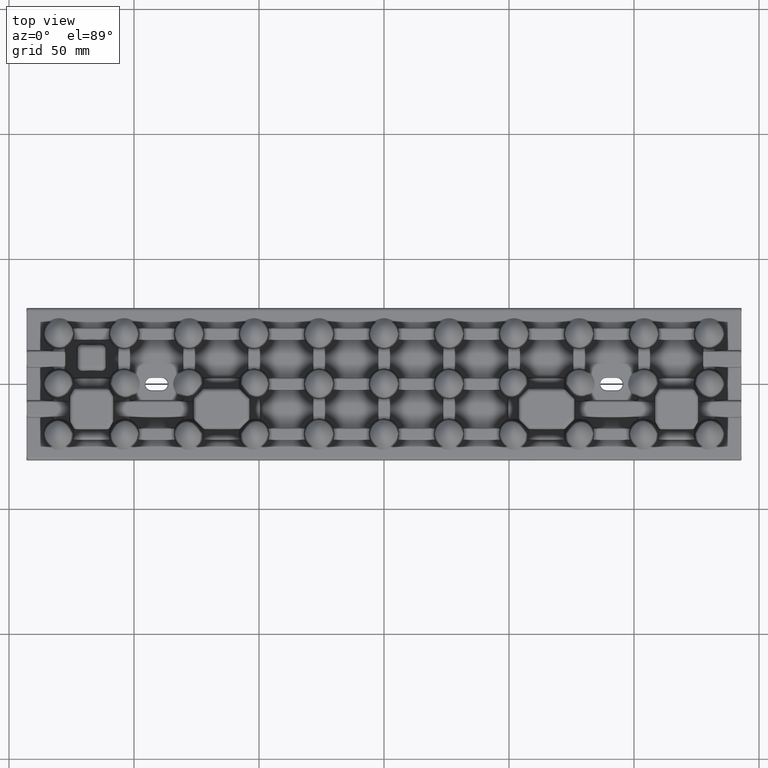
[diagram: clean part render]
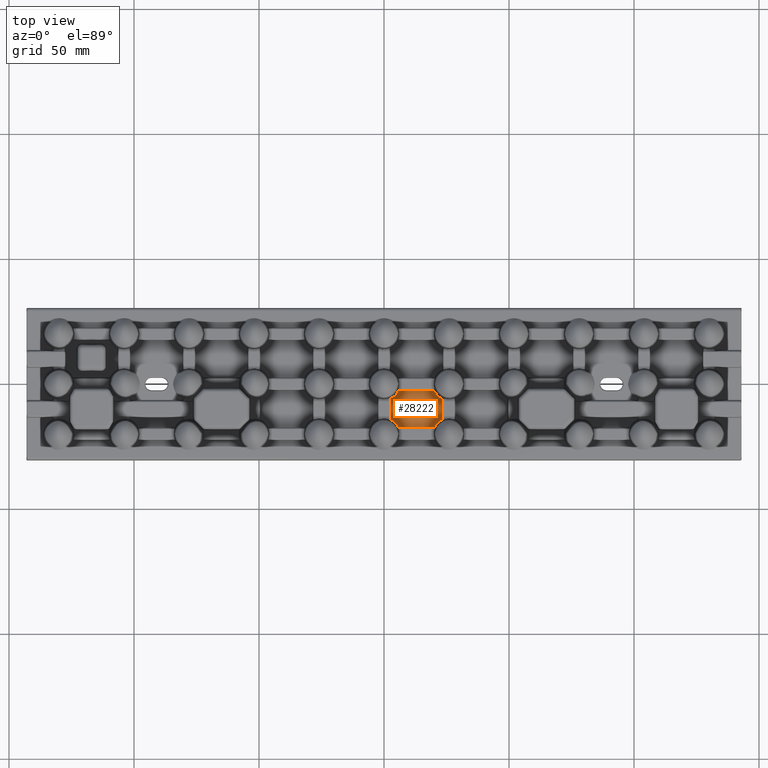
[diagram: same view with one face highlighted and labeled with its STEP entity id]
A machine part, top view. The second image highlights one B-rep face of the part: STEP entity #28222.
In plain terms, the highlighted planar face has unit normal (-0, 0, 1).
Its self-contained STEP definition (entity closure, byte-faithful):
#1151 = VECTOR ( 'NONE', #80390, 1000.000000000000000 ) ;
#1725 = CARTESIAN_POINT ( 'NONE',  ( 21.16839004852047900, -4.341878815327445900, 2.000000000000000400 ) ) ;
#2676 = EDGE_CURVE ( 'NONE', #43592, #4364, #26179, .T. ) ;
#3100 = EDGE_CURVE ( 'NONE', #43592, #72456, #27986, .T. ) ;
#4364 = VERTEX_POINT ( 'NONE', #23256 ) ;
#7873 = CARTESIAN_POINT ( 'NONE',  ( 5.685917497168330400, -2.741422193701768900, 2.000000000000000000 ) ) ;
#8302 = CARTESIAN_POINT ( 'NONE',  ( 23.25857780629830900, -14.23178765772969500, 2.000000000000000000 ) ) ;
#8770 = EDGE_CURVE ( 'NONE', #82723, #67484, #90773, .T. ) ;
#8794 = CARTESIAN_POINT ( 'NONE',  ( 22.03405226479270200, -14.97764072238752100, 2.000000000000074600 ) ) ;
#10177 = CARTESIAN_POINT ( 'NONE',  ( 5.685917497169370400, -17.25857780629830500, 2.000000000000000000 ) ) ;
#12687 = CARTESIAN_POINT ( 'NONE',  ( 20.52148709034824500, -3.418220828323987000, 1.999999999999998700 ) ) ;
#15770 = CARTESIAN_POINT ( 'NONE',  ( 23.25857780629830900, -5.564171097297501600, 2.000000000000000000 ) ) ;
#19718 = CARTESIAN_POINT ( 'NONE',  ( 21.62727971565646700, -15.33646028097527900, 2.000000000000070200 ) ) ;
#20253 = CARTESIAN_POINT ( 'NONE',  ( 5.564171097297355900, -2.741422193701768900, 2.000000000000000000 ) ) ;
#22790 = VECTOR ( 'NONE', #115012, 1000.000000000000000 ) ;
#23256 = CARTESIAN_POINT ( 'NONE',  ( 2.741422193701769800, -14.23179208399000100, 2.000000000000000000 ) ) ;
#23287 = CARTESIAN_POINT ( 'NONE',  ( 5.685917497169370400, -17.25857780629830500, 2.000000000000000000 ) ) ;
#23604 = CARTESIAN_POINT ( 'NONE',  ( 20.19330319997781900, -2.741422193701764400, 2.000000000000000000 ) ) ;
#26179 = LINE ( 'NONE', #115987, #22790 ) ;
#27986 = B_SPLINE_CURVE_WITH_KNOTS ( 'NONE', 3,
 ( #41334, #34830, #41939, #40568, #40402, #40237, #40103, #39939, #39776, #39636, #39466, #39285 ),
 .UNSPECIFIED., .F., .F.,
 ( 4, 2, 2, 2, 2, 4 ),
 ( 1.226634733346699300E-018, 0.001074085383375075600, 0.001611128075062612500, 0.002148170766750149100, 0.003222256150125221000, 0.004296341533500292100 ),
 .UNSPECIFIED. ) ;
#28222 = ADVANCED_FACE ( 'NONE', ( #42301 ), #114170, .T. ) ;
#29411 = VERTEX_POINT ( 'NONE', #29851 ) ;
#29851 = CARTESIAN_POINT ( 'NONE',  ( 20.19330319997781900, -2.741422193701764400, 2.000000000000000000 ) ) ;
#30623 = CARTESIAN_POINT ( 'NONE',  ( 21.02761680331482100, -16.00731512479866600, 1.999999999999999100 ) ) ;
#31059 = CARTESIAN_POINT ( 'NONE',  ( 20.43582890270252500, -17.25857780629830200, 2.000000000000000000 ) ) ;
#31989 = CARTESIAN_POINT ( 'NONE',  ( 4.973830895422655600, -16.00924355256730200, 2.000000000000000400 ) ) ;
#32673 = CARTESIAN_POINT ( 'NONE',  ( 20.31408161886347600, -17.25857780629830200, 2.000000000000000000 ) ) ;
#33858 = CARTESIAN_POINT ( 'NONE',  ( 23.25857780629830900, -5.895267414787722900, 2.000000000000000000 ) ) ;
#34830 = CARTESIAN_POINT ( 'NONE',  ( 3.072176561659079500, -5.618090448059344800, 1.999999999999999600 ) ) ;
#37260 = EDGE_CURVE ( 'NONE', #128084, #4364, #126991, .T. ) ;
#39285 = CARTESIAN_POINT ( 'NONE',  ( 5.685917497168330400, -2.741422193701768900, 2.000000000000000000 ) ) ;
#39463 = CARTESIAN_POINT ( 'NONE',  ( 2.741422193701768000, -5.768207916009392200, 2.000000000000000000 ) ) ;
#39466 = CARTESIAN_POINT ( 'NONE',  ( 5.539857702008952800, -3.073684243417178500, 2.000000000000000000 ) ) ;
#39636 = CARTESIAN_POINT ( 'NONE',  ( 5.367420710483522800, -3.393805111211600800, 2.000000000000000000 ) ) ;
#39776 = CARTESIAN_POINT ( 'NONE',  ( 4.972381543717333800, -3.992682463999139400, 2.000000000000000400 ) ) ;
#39939 = CARTESIAN_POINT ( 'NONE',  ( 4.749465153071637000, -4.273470592468930500, 2.000000000000068800 ) ) ;
#40103 = CARTESIAN_POINT ( 'NONE',  ( 4.372718522049467500, -4.663536202339630100, 2.000000000000068800 ) ) ;
#40237 = CARTESIAN_POINT ( 'NONE',  ( 4.239902783528528100, -4.788400185583141100, 2.000000000000072400 ) ) ;
#40402 = CARTESIAN_POINT ( 'NONE',  ( 3.965946254185725100, -5.022355105805214500, 2.000000000000072400 ) ) ;
#40568 = CARTESIAN_POINT ( 'NONE',  ( 3.824132689881301500, -5.132195336541149900, 2.000000000000000000 ) ) ;
#41334 = CARTESIAN_POINT ( 'NONE',  ( 2.741422193701768000, -5.768207916009392200, 2.000000000000000000 ) ) ;
#41450 = CARTESIAN_POINT ( 'NONE',  ( 20.46014112379477700, -16.92631523808894300, 2.000000000000000400 ) ) ;
#41939 = CARTESIAN_POINT ( 'NONE',  ( 3.384387753551627100, -5.440601997758140100, 1.999999999999999600 ) ) ;
#42301 = FACE_OUTER_BOUND ( 'NONE', #105992, .T. ) ;
#42810 = CARTESIAN_POINT ( 'NONE',  ( 3.990922909819653700, -14.94174063425505700, 2.000000000000000400 ) ) ;
#43592 = VERTEX_POINT ( 'NONE', #39463 ) ;
#47534 = ORIENTED_EDGE ( 'NONE', *, *, #104209, .T. ) ;
#50503 = AXIS2_PLACEMENT_3D ( 'NONE', #59951, #131193, #66421 ) ;
#52194 = ORIENTED_EDGE ( 'NONE', *, *, #78638, .T. ) ;
#52711 = CARTESIAN_POINT ( 'NONE',  ( 5.539534003313992400, -16.92557939520337500, 2.000000000000000000 ) ) ;
#53573 = LINE ( 'NONE', #20253, #136385 ) ;
#53631 = CARTESIAN_POINT ( 'NONE',  ( 2.741422193701769800, -14.23179208399000100, 2.000000000000000000 ) ) ;
#55643 = CARTESIAN_POINT ( 'NONE',  ( 22.58911433219478600, -5.556156872100869400, 2.000000000000000000 ) ) ;
#57161 = ORIENTED_EDGE ( 'NONE', *, *, #37260, .F. ) ;
#59951 = CARTESIAN_POINT ( 'NONE',  ( 0.0000000000000000000, 0.0000000000000000000, 2.000000000000000000 ) ) ;
#64205 = LINE ( 'NONE', #31059, #89505 ) ;
#64516 = EDGE_CURVE ( 'NONE', #82723, #70073, #131883, .T. ) ;
#66421 = DIRECTION ( 'NONE',  ( 1.000000000000000000, 0.0000000000000000000, 0.0000000000000000000 ) ) ;
#66457 = CARTESIAN_POINT ( 'NONE',  ( 21.68756667448254700, -4.880193193740970200, 2.000000000000000400 ) ) ;
#67484 = VERTEX_POINT ( 'NONE', #33858 ) ;
#69229 = CARTESIAN_POINT ( 'NONE',  ( 22.92782295262724500, -14.38190494159809400, 2.000000000000000000 ) ) ;
#70073 = VERTEX_POINT ( 'NONE', #32673 ) ;
#72456 = VERTEX_POINT ( 'NONE', #7873 ) ;
#73491 = CARTESIAN_POINT ( 'NONE',  ( 22.17586595345324700, -14.86780033483207900, 2.000000000000000000 ) ) ;
#76806 = ORIENTED_EDGE ( 'NONE', *, *, #87395, .T. ) ;
#77331 = CARTESIAN_POINT ( 'NONE',  ( 20.93539145744701500, -4.048418762393762200, 1.999999999999998200 ) ) ;
#78638 = EDGE_CURVE ( 'NONE', #29411, #72456, #53573, .T. ) ;
#80390 = DIRECTION ( 'NONE',  ( 0.0000000000000000000, 1.000000000000000000, -0.0000000000000000000 ) ) ;
#82723 = VERTEX_POINT ( 'NONE', #103698 ) ;
#84294 = CARTESIAN_POINT ( 'NONE',  ( 21.76009552905925300, -15.21159604906554800, 2.000000000000074200 ) ) ;
#84750 = DIRECTION ( 'NONE',  ( 1.000000000000000000, 1.652117596168382100E-016, 0.0000000000000000000 ) ) ;
#84868 = DIRECTION ( 'NONE',  ( -1.000000000000000000, -2.891205793294668500E-016, 0.0000000000000000000 ) ) ;
#87395 = EDGE_CURVE ( 'NONE', #128084, #70073, #64205, .T. ) ;
#88201 = CARTESIAN_POINT ( 'NONE',  ( 20.34436900752114900, -3.086902982824192100, 1.999999999999999600 ) ) ;
#89505 = VECTOR ( 'NONE', #84750, 1000.000000000000000 ) ;
#90277 = ORIENTED_EDGE ( 'NONE', *, *, #2676, .T. ) ;
#90773 = LINE ( 'NONE', #15770, #1151 ) ;
#95150 = CARTESIAN_POINT ( 'NONE',  ( 21.25053310405850500, -15.72652648526140200, 2.000000000000070200 ) ) ;
#95988 = ORIENTED_EDGE ( 'NONE', *, *, #64516, .F. ) ;
#96516 = CARTESIAN_POINT ( 'NONE',  ( 5.368766260134541400, -16.60850785381539300, 2.000000000000000400 ) ) ;
#103698 = CARTESIAN_POINT ( 'NONE',  ( 23.25857780629830900, -14.23178765772969500, 2.000000000000000000 ) ) ;
#104209 = EDGE_CURVE ( 'NONE', #67484, #29411, #125066, .T. ) ;
#105983 = CARTESIAN_POINT ( 'NONE',  ( 20.63257793627270300, -16.60619369257983600, 1.999999999999999600 ) ) ;
#105992 = EDGE_LOOP ( 'NONE', ( #126252, #47534, #52194, #125770, #90277, #57161, #76806, #95988 ) ) ;
#107385 = CARTESIAN_POINT ( 'NONE',  ( 4.748789353115943100, -15.72554655679054700, 2.000000000000000000 ) ) ;
#114170 = PLANE ( 'NONE',  #50503 ) ;
#115012 = DIRECTION ( 'NONE',  ( 2.023844055306265400E-016, -1.000000000000000000, 0.0000000000000000000 ) ) ;
#115987 = CARTESIAN_POINT ( 'NONE',  ( 2.741422193701769800, -14.43582890270256800, 2.000000000000000000 ) ) ;
#116860 = CARTESIAN_POINT ( 'NONE',  ( 20.31408161886347600, -17.25857780629830200, 2.000000000000000000 ) ) ;
#118232 = CARTESIAN_POINT ( 'NONE',  ( 3.404654709091838400, -14.53280938116822600, 1.999999999999999600 ) ) ;
#120279 = CARTESIAN_POINT ( 'NONE',  ( 22.91464611790279400, -5.740320581723781700, 2.000000000000000000 ) ) ;
#125066 = B_SPLINE_CURVE_WITH_KNOTS ( 'NONE', 3,
 ( #130775, #120279, #55643, #131221, #66457, #1725, #77331, #12687, #88201, #23604 ),
 .UNSPECIFIED., .F., .F.,
 ( 4, 2, 2, 2, 4 ),
 ( 0.0000000000000000000, 0.001120796366553188500, 0.002241592733106377000, 0.003362389099659565200, 0.004483185466212754800 ),
 .UNSPECIFIED. ) ;
#125770 = ORIENTED_EDGE ( 'NONE', *, *, #3100, .F. ) ;
#126252 = ORIENTED_EDGE ( 'NONE', *, *, #8770, .T. ) ;
#126991 = B_SPLINE_CURVE_WITH_KNOTS ( 'NONE', 3,
 ( #10177, #52711, #96516, #31989, #107385, #42810, #118232, #53631 ),
 .UNSPECIFIED., .F., .F.,
 ( 4, 2, 2, 4 ),
 ( 4.906538933386797400E-018, 0.001076539212269879900, 0.002153078424539754600, 0.004306156849079506600 ),
 .UNSPECIFIED. ) ;
#128084 = VERTEX_POINT ( 'NONE', #23287 ) ;
#130775 = CARTESIAN_POINT ( 'NONE',  ( 23.25857780629830900, -5.895267414787722900, 2.000000000000000000 ) ) ;
#131193 = DIRECTION ( 'NONE',  ( -0.0000000000000000000, 0.0000000000000000000, 1.000000000000000000 ) ) ;
#131221 = CARTESIAN_POINT ( 'NONE',  ( 21.97628796192458400, -5.127113284687745900, 2.000000000000000400 ) ) ;
#131883 = B_SPLINE_CURVE_WITH_KNOTS ( 'NONE', 3,
 ( #8302, #69229, #138229, #73491, #8794, #84294, #19718, #95150, #30623, #105983, #41450, #116860 ),
 .UNSPECIFIED., .F., .F.,
 ( 4, 2, 2, 2, 2, 4 ),
 ( 0.0000000000000000000, 0.001074086461339512300, 0.001611129692009271300, 0.002148172922679030200, 0.003222259384018559000, 0.004296345845358087400 ),
 .UNSPECIFIED. ) ;
#136385 = VECTOR ( 'NONE', #84868, 1000.000000000000000 ) ;
#138229 = CARTESIAN_POINT ( 'NONE',  ( 22.61561136040928900, -14.55939339204710400, 2.000000000000000000 ) ) ;